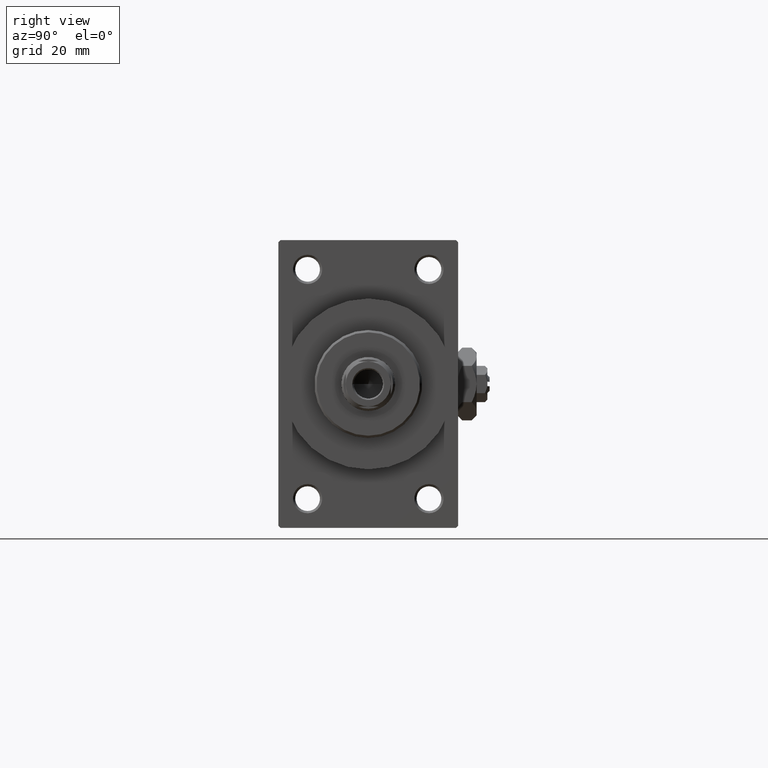
[diagram: clean part render]
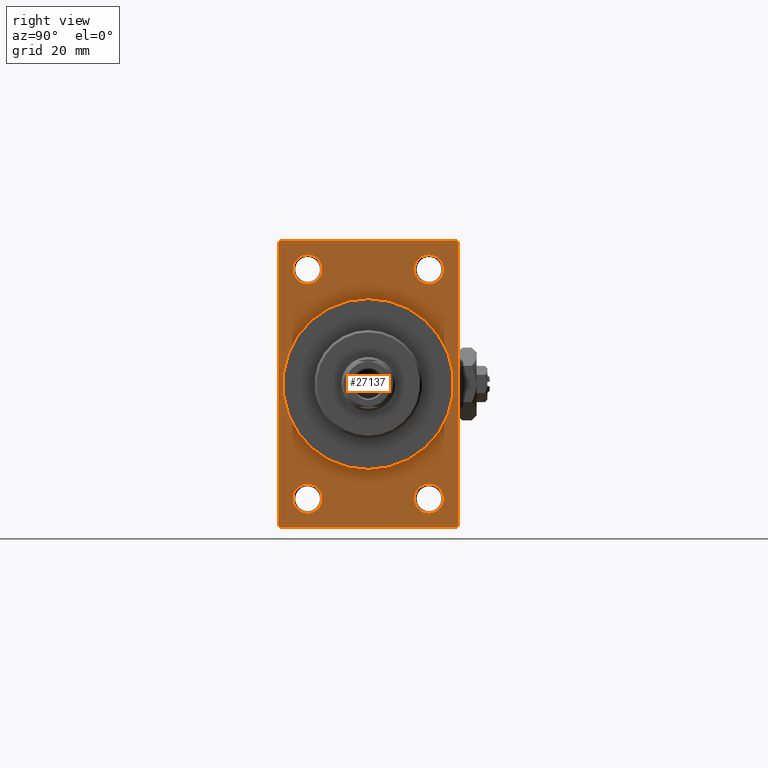
[diagram: same view with one face highlighted and labeled with its STEP entity id]
A machine part, right view. The second image highlights one B-rep face of the part: STEP entity #27137.
In plain terms, the highlighted planar face has unit normal (-1, 0, 0).
Its self-contained STEP definition (entity closure, byte-faithful):
#413 = DIRECTION ( 'NONE',  ( -1.000000000000000000, 0.000000000000000000, -0.000000000000000000 ) ) ;
#647 = DIRECTION ( 'NONE',  ( -0.000000000000000000, 0.000000000000000000, 1.000000000000000000 ) ) ;
#1011 = DIRECTION ( 'NONE',  ( -1.000000000000000000, -0.000000000000000000, -0.000000000000000000 ) ) ;
#1106 = DIRECTION ( 'NONE',  ( 0.000000000000000000, -1.000000000000000000, 0.000000000000000000 ) ) ;
#1661 = CARTESIAN_POINT ( 'NONE',  ( 109.0000000000000142, -19.49999999999998579, -32.00000000000000000 ) ) ;
#3156 = VERTEX_POINT ( 'NONE', #24790 ) ;
#3181 = CIRCLE ( 'NONE', #41141, 19.00000000000000000 ) ;
#3878 = VECTOR ( 'NONE', #43128, 1000.000000000000114 ) ;
#3978 = ORIENTED_EDGE ( 'NONE', *, *, #11622, .T. ) ;
#4077 = CARTESIAN_POINT ( 'NONE',  ( 109.0000000000000142, 19.49999999999998579, 32.00000000000000000 ) ) ;
#4278 = EDGE_CURVE ( 'NONE', #25048, #3156, #3181, .T. ) ;
#5177 = CARTESIAN_POINT ( 'NONE',  ( 109.0000000000000142, -20.00000000000000000, 31.99999999999999289 ) ) ;
#5386 = DIRECTION ( 'NONE',  ( 0.000000000000000000, 0.7071067811865426878, -0.7071067811865524577 ) ) ;
#5429 = EDGE_CURVE ( 'NONE', #28858, #43272, #28112, .T. ) ;
#5900 = DIRECTION ( 'NONE',  ( 0.000000000000000000, 0.000000000000000000, 1.000000000000000000 ) ) ;
#6028 = DIRECTION ( 'NONE',  ( -1.000000000000000000, -0.000000000000000000, -0.000000000000000000 ) ) ;
#6584 = EDGE_LOOP ( 'NONE', ( #30355, #8217 ) ) ;
#6778 = LINE ( 'NONE', #33800, #18402 ) ;
#6828 = EDGE_CURVE ( 'NONE', #3156, #25048, #7215, .T. ) ;
#7084 = CIRCLE ( 'NONE', #25292, 3.250000000000002665 ) ;
#7215 = CIRCLE ( 'NONE', #42786, 19.00000000000000000 ) ;
#7266 = CARTESIAN_POINT ( 'NONE',  ( 109.0000000000000142, 20.00000000000000000, 31.49999999999998579 ) ) ;
#7297 = ORIENTED_EDGE ( 'NONE', *, *, #29083, .T. ) ;
#7970 = DIRECTION ( 'NONE',  ( 0.000000000000000000, 0.000000000000000000, 1.000000000000000000 ) ) ;
#8217 = ORIENTED_EDGE ( 'NONE', *, *, #4278, .F. ) ;
#8584 = CARTESIAN_POINT ( 'NONE',  ( 109.0000000000000142, -13.50000000000000533, -28.74999999999999645 ) ) ;
#8699 = DIRECTION ( 'NONE',  ( 0.000000000000000000, 0.000000000000000000, -1.000000000000000000 ) ) ;
#8748 = CARTESIAN_POINT ( 'NONE',  ( 109.0000000000000142, -20.00000000000000000, 31.49999999999997868 ) ) ;
#9455 = EDGE_CURVE ( 'NONE', #20252, #16067, #20148, .T. ) ;
#9956 = EDGE_LOOP ( 'NONE', ( #12718, #46902 ) ) ;
#9990 = DIRECTION ( 'NONE',  ( 0.000000000000000000, 0.000000000000000000, 1.000000000000000000 ) ) ;
#10485 = CARTESIAN_POINT ( 'NONE',  ( 109.0000000000000142, 13.49999999999999822, -25.50000000000000000 ) ) ;
#10513 = VERTEX_POINT ( 'NONE', #42813 ) ;
#11550 = VECTOR ( 'NONE', #15875, 1000.000000000000000 ) ;
#11567 = FACE_OUTER_BOUND ( 'NONE', #44430, .T. ) ;
#11622 = EDGE_CURVE ( 'NONE', #14417, #21195, #39881, .T. ) ;
#11670 = DIRECTION ( 'NONE',  ( 0.000000000000000000, 0.000000000000000000, 1.000000000000000000 ) ) ;
#12018 = EDGE_CURVE ( 'NONE', #39793, #44892, #29126, .T. ) ;
#12177 = CARTESIAN_POINT ( 'NONE',  ( 109.0000000000000142, -13.50000000000000178, 28.75000000000000355 ) ) ;
#12215 = VERTEX_POINT ( 'NONE', #4077 ) ;
#12294 = FACE_BOUND ( 'NONE', #6584, .T. ) ;
#12625 = CARTESIAN_POINT ( 'NONE',  ( 109.0000000000000142, -13.50000000000000533, -25.49999999999999645 ) ) ;
#12718 = ORIENTED_EDGE ( 'NONE', *, *, #45902, .T. ) ;
#12760 = DIRECTION ( 'NONE',  ( -0.000000000000000000, -0.7071067811865474617, -0.7071067811865474617 ) ) ;
#12863 = EDGE_LOOP ( 'NONE', ( #21314, #7297 ) ) ;
#14417 = VERTEX_POINT ( 'NONE', #33994 ) ;
#14907 = ORIENTED_EDGE ( 'NONE', *, *, #12018, .F. ) ;
#15318 = DIRECTION ( 'NONE',  ( -1.000000000000000000, -0.000000000000000000, -0.000000000000000000 ) ) ;
#15395 = CARTESIAN_POINT ( 'NONE',  ( 109.0000000000000142, 20.00000000000000000, 32.00000000000000000 ) ) ;
#15875 = DIRECTION ( 'NONE',  ( 0.000000000000000000, -1.000000000000000000, -1.734723475976807094E-16 ) ) ;
#16063 = EDGE_CURVE ( 'NONE', #12215, #30490, #19355, .T. ) ;
#16067 = VERTEX_POINT ( 'NONE', #12177 ) ;
#16489 = DIRECTION ( 'NONE',  ( 0.000000000000000000, 0.000000000000000000, -1.000000000000000000 ) ) ;
#16941 = CARTESIAN_POINT ( 'NONE',  ( 109.0000000000000142, -20.00000000000000000, 31.49999999999997868 ) ) ;
#17081 = CARTESIAN_POINT ( 'NONE',  ( 109.0000000000000142, 20.00000000000000000, -31.49999999999998579 ) ) ;
#17533 = CARTESIAN_POINT ( 'NONE',  ( 109.0000000000000142, -13.50000000000000178, 25.50000000000000355 ) ) ;
#17684 = CARTESIAN_POINT ( 'NONE',  ( 109.0000000000000142, -20.00000000000000000, -31.49999999999997868 ) ) ;
#17715 = ORIENTED_EDGE ( 'NONE', *, *, #20062, .T. ) ;
#17868 = CARTESIAN_POINT ( 'NONE',  ( 109.0000000000000142, 20.00000000000000000, -31.49999999999998579 ) ) ;
#18333 = AXIS2_PLACEMENT_3D ( 'NONE', #25991, #15318, #34421 ) ;
#18402 = VECTOR ( 'NONE', #25357, 1000.000000000000114 ) ;
#18831 = ORIENTED_EDGE ( 'NONE', *, *, #45249, .T. ) ;
#18900 = DIRECTION ( 'NONE',  ( -1.000000000000000000, -0.000000000000000000, -0.000000000000000000 ) ) ;
#18985 = PLANE ( 'NONE',  #41863 ) ;
#19238 = FACE_BOUND ( 'NONE', #34267, .T. ) ;
#19355 = LINE ( 'NONE', #15395, #11550 ) ;
#19475 = FACE_BOUND ( 'NONE', #37772, .T. ) ;
#19821 = VECTOR ( 'NONE', #1106, 1000.000000000000000 ) ;
#20062 = EDGE_CURVE ( 'NONE', #37235, #43272, #32161, .T. ) ;
#20148 = CIRCLE ( 'NONE', #38373, 3.250000000000002665 ) ;
#20252 = VERTEX_POINT ( 'NONE', #38826 ) ;
#21195 = VERTEX_POINT ( 'NONE', #8584 ) ;
#21314 = ORIENTED_EDGE ( 'NONE', *, *, #45809, .T. ) ;
#21638 = VERTEX_POINT ( 'NONE', #39017 ) ;
#22828 = VERTEX_POINT ( 'NONE', #8748 ) ;
#23601 = VERTEX_POINT ( 'NONE', #43561 ) ;
#24190 = DIRECTION ( 'NONE',  ( 1.000000000000000000, 0.000000000000000000, 0.000000000000000000 ) ) ;
#24790 = CARTESIAN_POINT ( 'NONE',  ( 109.0000000000000142, 0.000000000000000000, 19.00000000000000000 ) ) ;
#25048 = VERTEX_POINT ( 'NONE', #34596 ) ;
#25292 = AXIS2_PLACEMENT_3D ( 'NONE', #10485, #6028, #9990 ) ;
#25357 = DIRECTION ( 'NONE',  ( 0.000000000000000000, -0.7071067811865474617, 0.7071067811865474617 ) ) ;
#25649 = CARTESIAN_POINT ( 'NONE',  ( 109.0000000000000142, 20.00000000000000000, 32.00000000000000000 ) ) ;
#25991 = CARTESIAN_POINT ( 'NONE',  ( 109.0000000000000142, 13.49999999999999822, 25.50000000000000355 ) ) ;
#25998 = ORIENTED_EDGE ( 'NONE', *, *, #9455, .T. ) ;
#26494 = CARTESIAN_POINT ( 'NONE',  ( 109.0000000000000142, 13.49999999999999822, -25.50000000000000000 ) ) ;
#26809 = CARTESIAN_POINT ( 'NONE',  ( 109.0000000000000142, -13.50000000000000533, -25.49999999999999645 ) ) ;
#27137 = ADVANCED_FACE ( 'NONE', ( #19475, #19238, #34622, #42288, #12294, #11567 ), #18985, .F. ) ;
#27741 = VECTOR ( 'NONE', #12760, 1000.000000000000114 ) ;
#27786 = ORIENTED_EDGE ( 'NONE', *, *, #39977, .T. ) ;
#28016 = ORIENTED_EDGE ( 'NONE', *, *, #5429, .F. ) ;
#28031 = LINE ( 'NONE', #17081, #3878 ) ;
#28112 = LINE ( 'NONE', #42506, #19821 ) ;
#28509 = CARTESIAN_POINT ( 'NONE',  ( 109.0000000000000142, 0.000000000000000000, 0.000000000000000000 ) ) ;
#28858 = VERTEX_POINT ( 'NONE', #48550 ) ;
#28954 = DIRECTION ( 'NONE',  ( -1.000000000000000000, -0.000000000000000000, -0.000000000000000000 ) ) ;
#29083 = EDGE_CURVE ( 'NONE', #34438, #10513, #7084, .T. ) ;
#29126 = LINE ( 'NONE', #25649, #44638 ) ;
#29471 = DIRECTION ( 'NONE',  ( 0.000000000000000000, 0.000000000000000000, 1.000000000000000000 ) ) ;
#30185 = CIRCLE ( 'NONE', #44419, 3.250000000000002665 ) ;
#30355 = ORIENTED_EDGE ( 'NONE', *, *, #6828, .F. ) ;
#30490 = VERTEX_POINT ( 'NONE', #38432 ) ;
#30930 = VECTOR ( 'NONE', #43080, 1000.000000000000000 ) ;
#31391 = DIRECTION ( 'NONE',  ( -1.000000000000000000, -0.000000000000000000, -0.000000000000000000 ) ) ;
#31752 = DIRECTION ( 'NONE',  ( 1.000000000000000000, 0.000000000000000000, 0.000000000000000000 ) ) ;
#31778 = CIRCLE ( 'NONE', #37342, 3.250000000000002665 ) ;
#32161 = LINE ( 'NONE', #1661, #41758 ) ;
#32623 = EDGE_CURVE ( 'NONE', #21195, #14417, #31778, .T. ) ;
#33003 = ORIENTED_EDGE ( 'NONE', *, *, #42309, .T. ) ;
#33478 = AXIS2_PLACEMENT_3D ( 'NONE', #26494, #34183, #29471 ) ;
#33800 = CARTESIAN_POINT ( 'NONE',  ( 109.0000000000000142, 19.49999999999998579, 32.00000000000000000 ) ) ;
#33982 = ORIENTED_EDGE ( 'NONE', *, *, #34099, .T. ) ;
#33994 = CARTESIAN_POINT ( 'NONE',  ( 109.0000000000000142, -13.50000000000000533, -22.24999999999999289 ) ) ;
#34099 = EDGE_CURVE ( 'NONE', #30490, #22828, #43226, .T. ) ;
#34183 = DIRECTION ( 'NONE',  ( -1.000000000000000000, -0.000000000000000000, -0.000000000000000000 ) ) ;
#34267 = EDGE_LOOP ( 'NONE', ( #44911, #3978 ) ) ;
#34383 = CARTESIAN_POINT ( 'NONE',  ( 109.0000000000000142, 0.000000000000000000, 0.000000000000000000 ) ) ;
#34393 = DIRECTION ( 'NONE',  ( 0.000000000000000000, 0.000000000000000000, 1.000000000000000000 ) ) ;
#34421 = DIRECTION ( 'NONE',  ( 0.000000000000000000, 0.000000000000000000, 1.000000000000000000 ) ) ;
#34438 = VERTEX_POINT ( 'NONE', #46907 ) ;
#34470 = ORIENTED_EDGE ( 'NONE', *, *, #36663, .T. ) ;
#34596 = CARTESIAN_POINT ( 'NONE',  ( 109.0000000000000142, 2.326828918379970970E-15, -19.00000000000000000 ) ) ;
#34622 = FACE_BOUND ( 'NONE', #12863, .T. ) ;
#35132 = CARTESIAN_POINT ( 'NONE',  ( 109.0000000000000142, 0.000000000000000000, 0.000000000000000000 ) ) ;
#35279 = ORIENTED_EDGE ( 'NONE', *, *, #16063, .T. ) ;
#35737 = CIRCLE ( 'NONE', #18333, 3.249999999999961364 ) ;
#36349 = AXIS2_PLACEMENT_3D ( 'NONE', #38592, #31391, #34393 ) ;
#36663 = EDGE_CURVE ( 'NONE', #28858, #44892, #28031, .T. ) ;
#37208 = DIRECTION ( 'NONE',  ( -1.000000000000000000, -0.000000000000000000, -0.000000000000000000 ) ) ;
#37235 = VERTEX_POINT ( 'NONE', #17684 ) ;
#37342 = AXIS2_PLACEMENT_3D ( 'NONE', #12625, #18900, #41230 ) ;
#37772 = EDGE_LOOP ( 'NONE', ( #25998, #33003 ) ) ;
#38311 = AXIS2_PLACEMENT_3D ( 'NONE', #26809, #1011, #7970 ) ;
#38373 = AXIS2_PLACEMENT_3D ( 'NONE', #45636, #37208, #11670 ) ;
#38432 = CARTESIAN_POINT ( 'NONE',  ( 109.0000000000000142, -19.49999999999998579, 31.99999999999999289 ) ) ;
#38463 = EDGE_CURVE ( 'NONE', #21638, #23601, #49040, .T. ) ;
#38592 = CARTESIAN_POINT ( 'NONE',  ( 109.0000000000000142, 13.49999999999999822, 25.50000000000000355 ) ) ;
#38826 = CARTESIAN_POINT ( 'NONE',  ( 109.0000000000000142, -13.50000000000000178, 22.25000000000000000 ) ) ;
#39017 = CARTESIAN_POINT ( 'NONE',  ( 109.0000000000000142, 13.49999999999999822, 28.74999999999996803 ) ) ;
#39793 = VERTEX_POINT ( 'NONE', #7266 ) ;
#39881 = CIRCLE ( 'NONE', #38311, 3.250000000000002665 ) ;
#39977 = EDGE_CURVE ( 'NONE', #22828, #37235, #42846, .T. ) ;
#40767 = DIRECTION ( 'NONE',  ( 0.000000000000000000, 0.000000000000000000, -1.000000000000000000 ) ) ;
#40859 = CARTESIAN_POINT ( 'NONE',  ( 109.0000000000000142, -19.49999999999998579, -32.00000000000000000 ) ) ;
#41141 = AXIS2_PLACEMENT_3D ( 'NONE', #35132, #24190, #16489 ) ;
#41230 = DIRECTION ( 'NONE',  ( 0.000000000000000000, 0.000000000000000000, 1.000000000000000000 ) ) ;
#41758 = VECTOR ( 'NONE', #5386, 1000.000000000000000 ) ;
#41863 = AXIS2_PLACEMENT_3D ( 'NONE', #34383, #413, #647 ) ;
#42288 = FACE_BOUND ( 'NONE', #9956, .T. ) ;
#42309 = EDGE_CURVE ( 'NONE', #16067, #20252, #30185, .T. ) ;
#42506 = CARTESIAN_POINT ( 'NONE',  ( 109.0000000000000142, 20.00000000000000000, -32.00000000000000000 ) ) ;
#42786 = AXIS2_PLACEMENT_3D ( 'NONE', #28509, #31752, #8699 ) ;
#42813 = CARTESIAN_POINT ( 'NONE',  ( 109.0000000000000142, 13.49999999999999822, -28.75000000000000000 ) ) ;
#42846 = LINE ( 'NONE', #5177, #30930 ) ;
#43080 = DIRECTION ( 'NONE',  ( 0.000000000000000000, 0.000000000000000000, -1.000000000000000000 ) ) ;
#43128 = DIRECTION ( 'NONE',  ( -0.000000000000000000, 0.7071067811865474617, 0.7071067811865474617 ) ) ;
#43226 = LINE ( 'NONE', #16941, #27741 ) ;
#43272 = VERTEX_POINT ( 'NONE', #40859 ) ;
#43561 = CARTESIAN_POINT ( 'NONE',  ( 109.0000000000000142, 13.49999999999999822, 22.25000000000004263 ) ) ;
#44419 = AXIS2_PLACEMENT_3D ( 'NONE', #17533, #28954, #5900 ) ;
#44430 = EDGE_LOOP ( 'NONE', ( #27786, #17715, #28016, #34470, #14907, #18831, #35279, #33982 ) ) ;
#44638 = VECTOR ( 'NONE', #40767, 1000.000000000000000 ) ;
#44892 = VERTEX_POINT ( 'NONE', #17868 ) ;
#44911 = ORIENTED_EDGE ( 'NONE', *, *, #32623, .T. ) ;
#45249 = EDGE_CURVE ( 'NONE', #39793, #12215, #6778, .T. ) ;
#45636 = CARTESIAN_POINT ( 'NONE',  ( 109.0000000000000142, -13.50000000000000178, 25.50000000000000355 ) ) ;
#45809 = EDGE_CURVE ( 'NONE', #10513, #34438, #48509, .T. ) ;
#45902 = EDGE_CURVE ( 'NONE', #23601, #21638, #35737, .T. ) ;
#46902 = ORIENTED_EDGE ( 'NONE', *, *, #38463, .T. ) ;
#46907 = CARTESIAN_POINT ( 'NONE',  ( 109.0000000000000142, 13.49999999999999822, -22.24999999999999645 ) ) ;
#48509 = CIRCLE ( 'NONE', #33478, 3.250000000000002665 ) ;
#48550 = CARTESIAN_POINT ( 'NONE',  ( 109.0000000000000142, 19.49999999999998579, -32.00000000000000000 ) ) ;
#49040 = CIRCLE ( 'NONE', #36349, 3.249999999999961364 ) ;